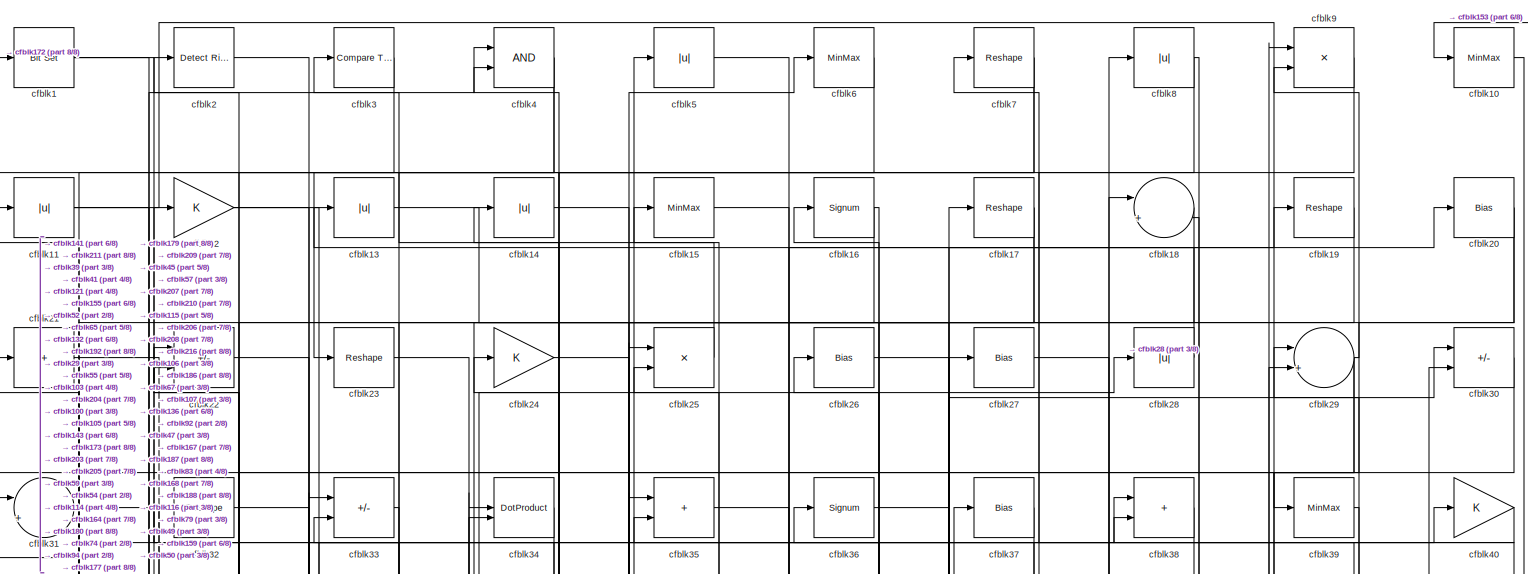
[diagram: root canvas - part 1/8, full width, top band]
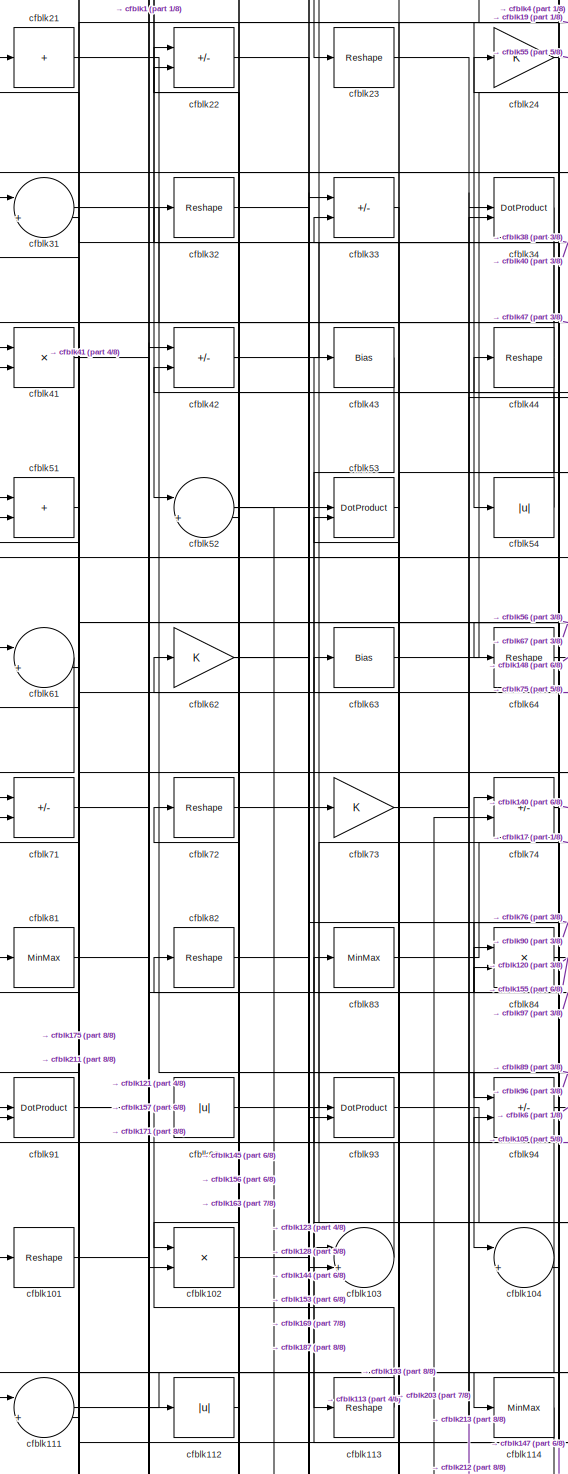
[diagram: root canvas - part 2/8, top left region]
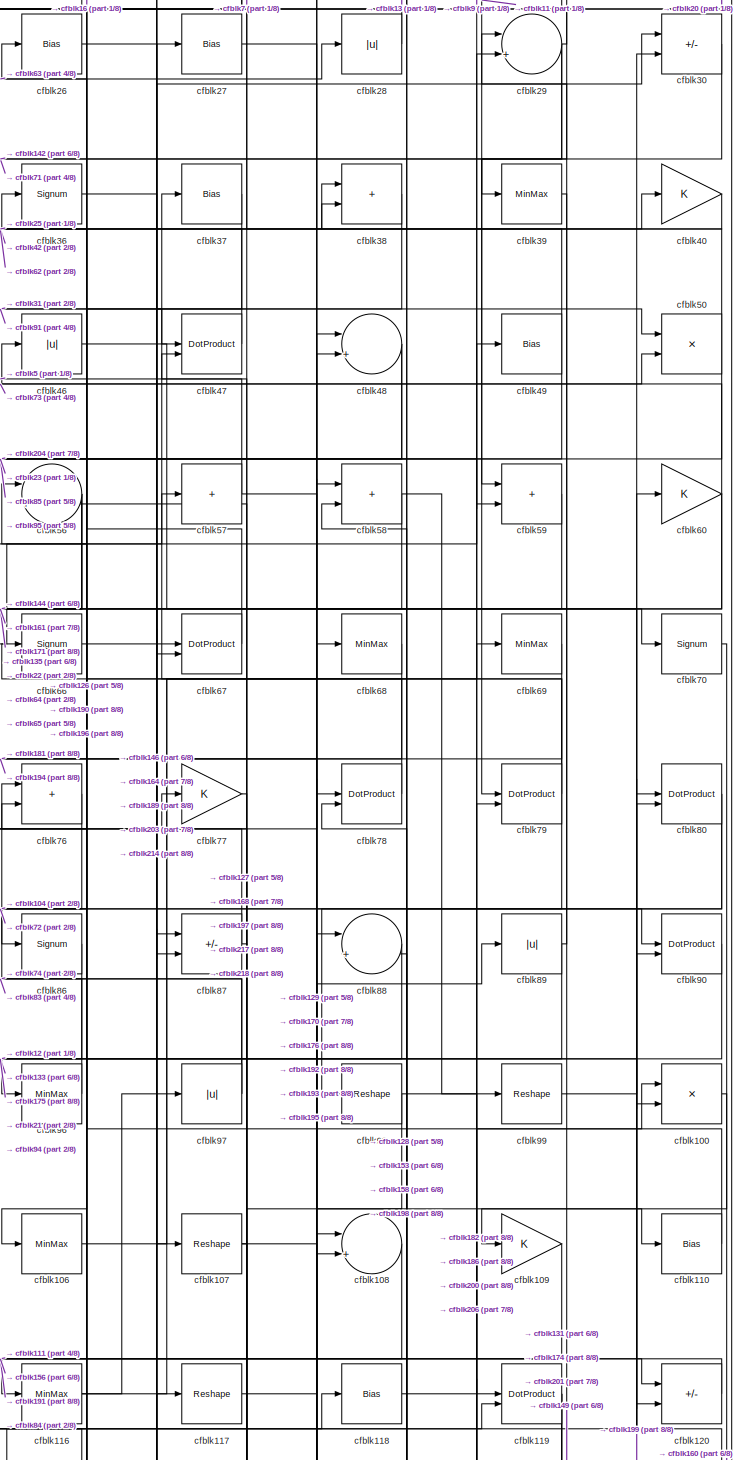
[diagram: root canvas - part 3/8, top right region]
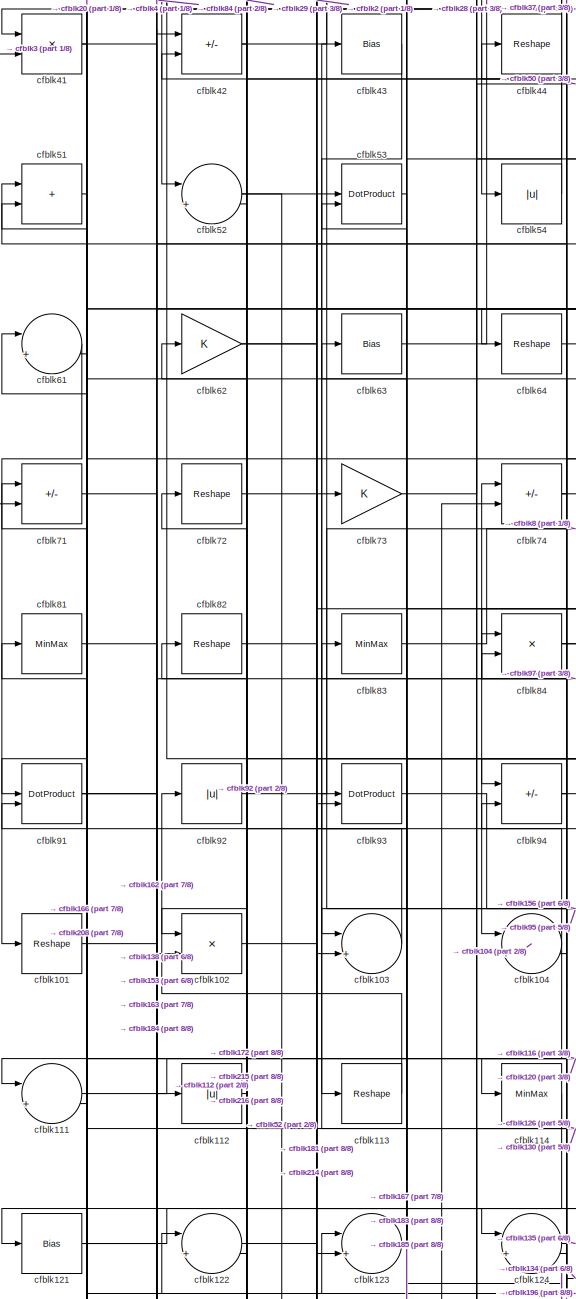
[diagram: root canvas - part 4/8, middle left region]
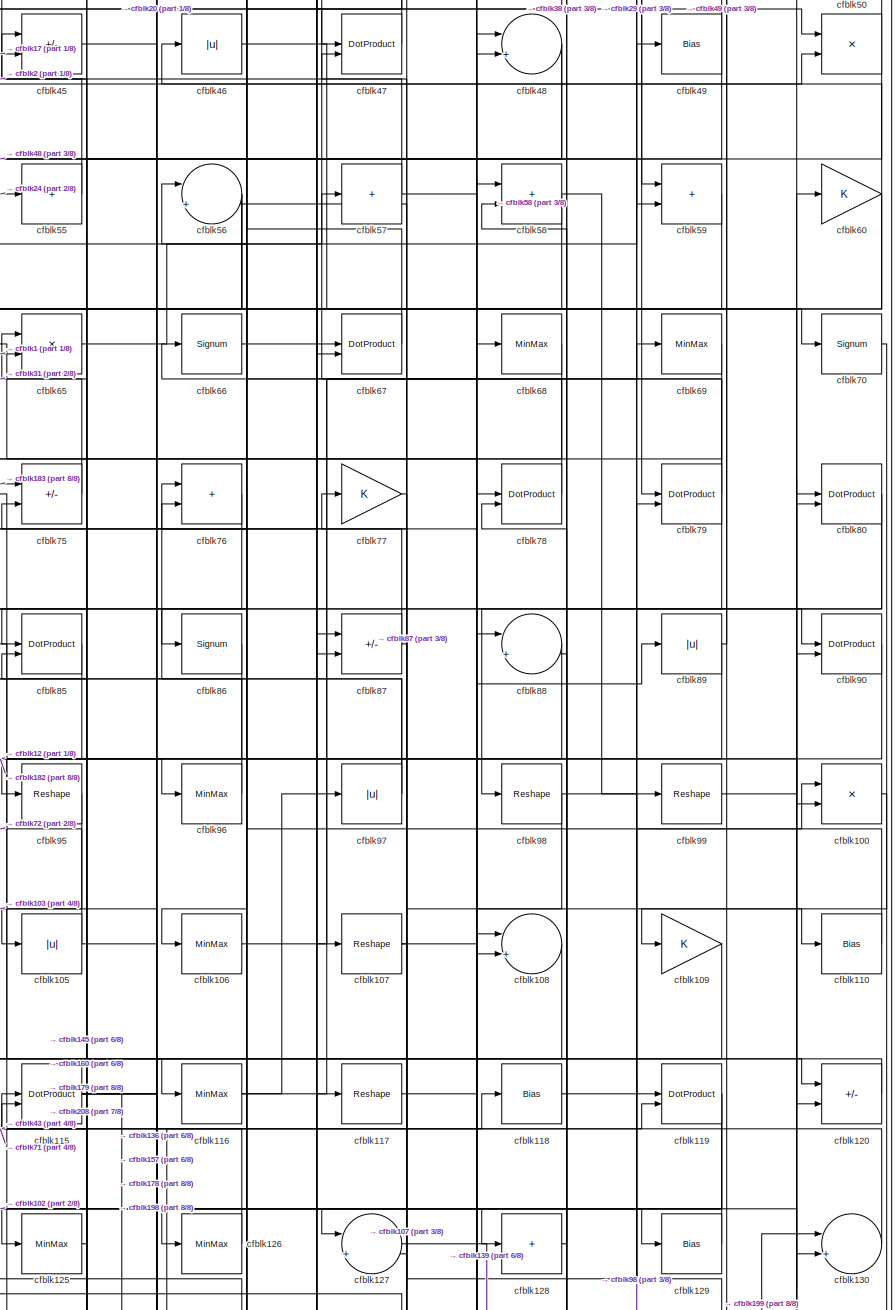
[diagram: root canvas - part 5/8, middle right region]
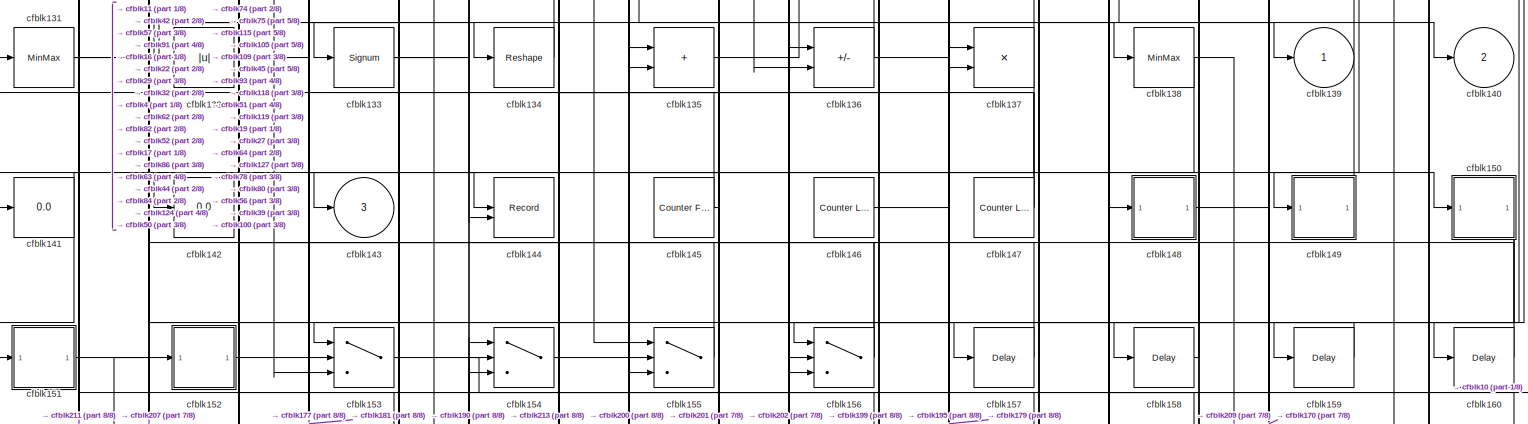
[diagram: root canvas - part 6/8, full width, middle band]
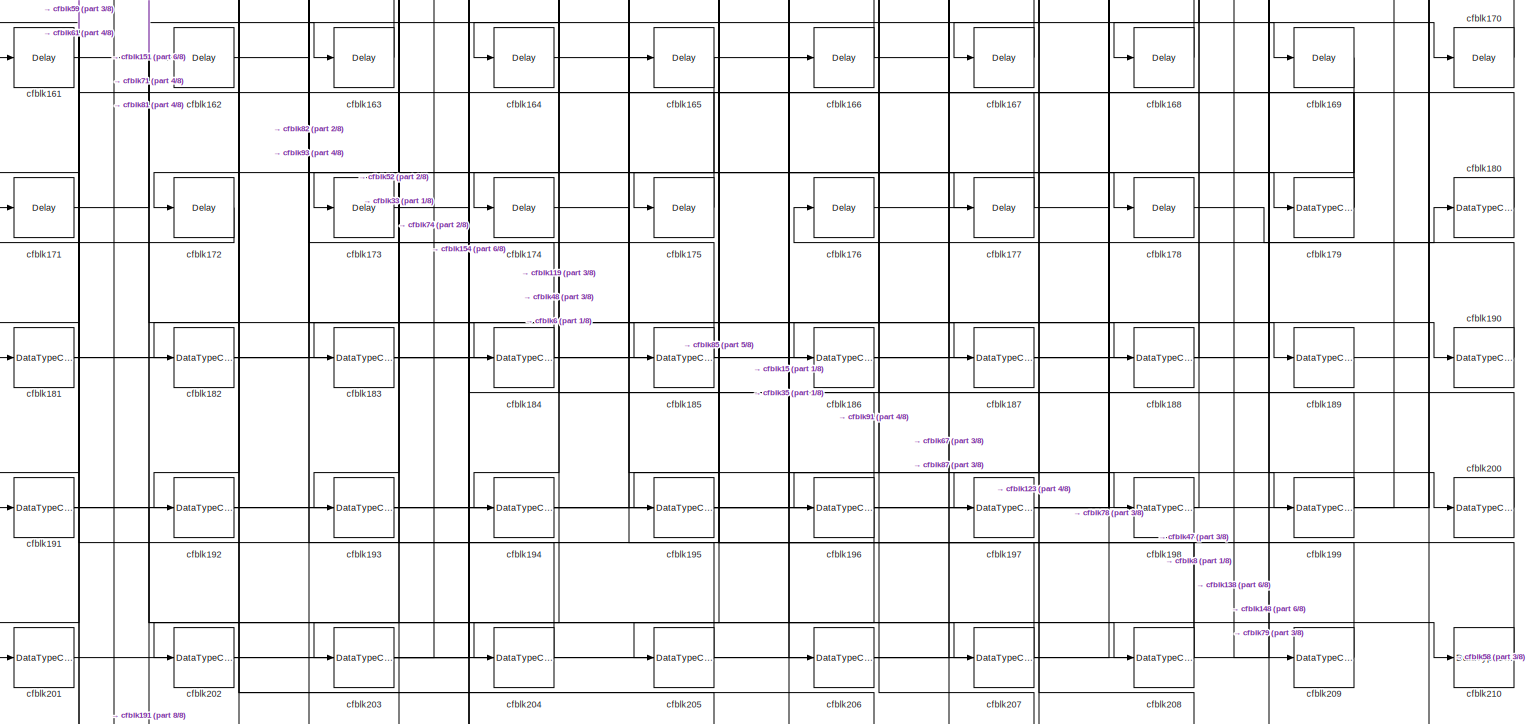
[diagram: root canvas - part 7/8, full width, bottom band]
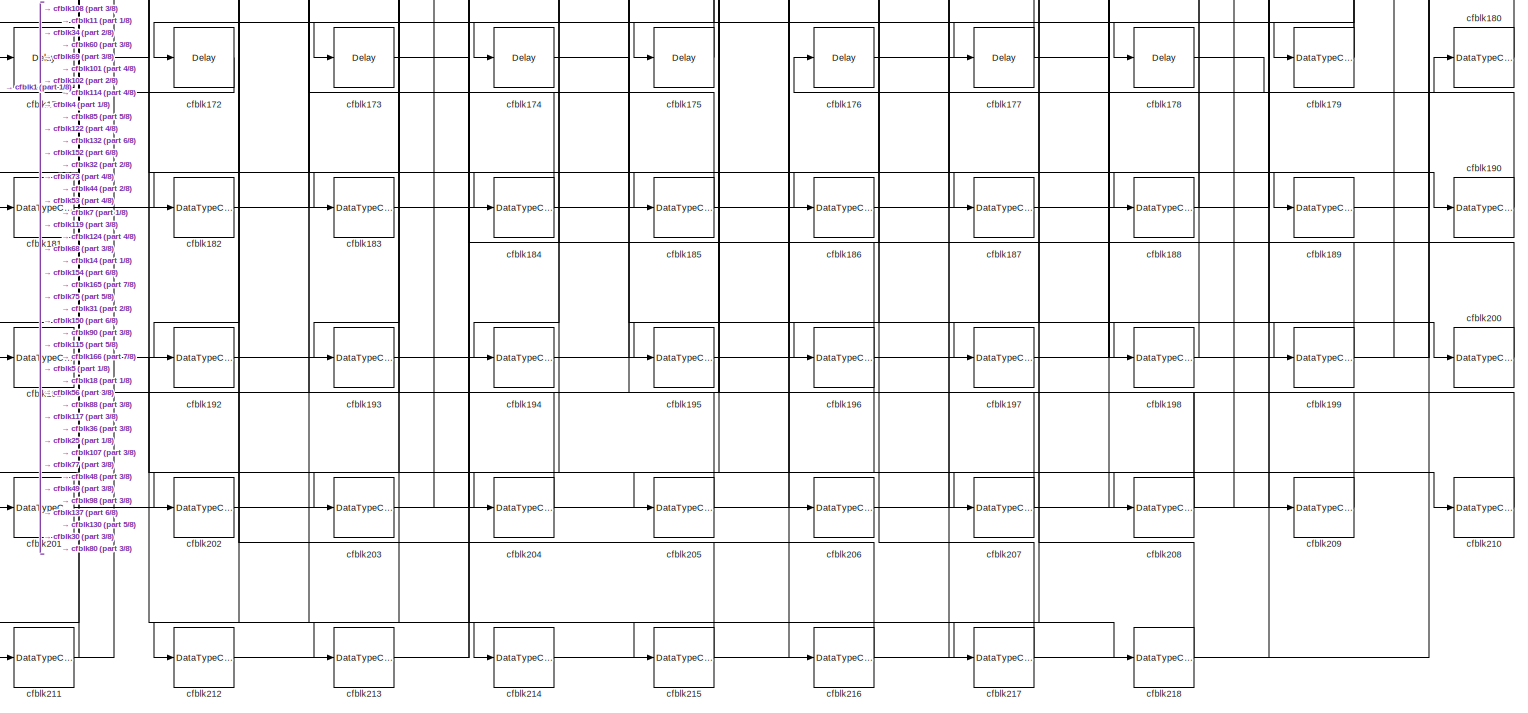
[diagram: root canvas - part 8/8, full width, bottom band]
MODEL slx_5d2e4cc144a2
KIND model
CONFIG AbsTol = auto
CONFIG EnableMultiTasking = off
CONFIG FixedStep = auto
CONFIG MaxStep = auto
CONFIG MinStep = auto
CONFIG RelTol = 1e-3
CONFIG SampleTimeConstraint = Unconstrained
CONFIG SolverName = VariableStepAuto
CONFIG StartTime = 0.0
CONFIG StopTime = 10.0
BLOCK [Reference] cfblk1  REF=simulink/Logic and Bit
Operations/Bit Set
  LibrarySourceBlock = hdlsllib/Logic and Bit\nOperations/Bit Set
  SourceBlock = simulink/Logic and Bit\nOperations/Bit Set
  SourceType = Bit Set
BLOCK [MinMax] cfblk10
BLOCK [Product] cfblk100
  Inputs = */
  RndMeth = Zero
  SaturateOnIntegerOverflow = on
BLOCK [Reshape] cfblk101
BLOCK [Product] cfblk102
  Inputs = */
  RndMeth = Zero
  SaturateOnIntegerOverflow = on
BLOCK [Sum] cfblk103
  Inputs = |++
BLOCK [Sum] cfblk104
  Inputs = |++
BLOCK [Abs] cfblk105
  SaturateOnIntegerOverflow = off
BLOCK [MinMax] cfblk106
BLOCK [Reshape] cfblk107
BLOCK [Sum] cfblk108
  Inputs = |++
BLOCK [Gain] cfblk109
BLOCK [Abs] cfblk11
  SaturateOnIntegerOverflow = off
BLOCK [Bias] cfblk110
  Bias = 0.0
  SaturateOnIntegerOverflow = off
BLOCK [Sum] cfblk111
  Inputs = |++
BLOCK [Abs] cfblk112
  SaturateOnIntegerOverflow = off
BLOCK [Reshape] cfblk113
BLOCK [MinMax] cfblk114
BLOCK [DotProduct] cfblk115
  OutDataTypeStr = Inherit: Inherit via internal rule
BLOCK [MinMax] cfblk116
BLOCK [Reshape] cfblk117
BLOCK [Bias] cfblk118
  Bias = 0.0
  SaturateOnIntegerOverflow = off
BLOCK [DotProduct] cfblk119
  OutDataTypeStr = Inherit: Inherit via internal rule
BLOCK [Gain] cfblk12
BLOCK [Sum] cfblk120
  IconShape = rectangular
  Inputs = +-
BLOCK [Bias] cfblk121
  Bias = 0.0
  SaturateOnIntegerOverflow = off
BLOCK [Sum] cfblk122
  Inputs = |++
BLOCK [Sum] cfblk123
  Inputs = |++
BLOCK [Sum] cfblk124
  Inputs = |++
BLOCK [MinMax] cfblk125
BLOCK [MinMax] cfblk126
BLOCK [Sum] cfblk127
  Inputs = |++
BLOCK [Sum] cfblk128
  IconShape = rectangular
  Inputs = +
BLOCK [Bias] cfblk129
  Bias = 0.0
  SaturateOnIntegerOverflow = off
BLOCK [Abs] cfblk13
  SaturateOnIntegerOverflow = off
BLOCK [Sum] cfblk130
  Inputs = |++
BLOCK [MinMax] cfblk131
BLOCK [Abs] cfblk132
  SaturateOnIntegerOverflow = off
BLOCK [Signum] cfblk133
BLOCK [Reshape] cfblk134
BLOCK [Sum] cfblk135
  IconShape = rectangular
BLOCK [Sum] cfblk136
  IconShape = rectangular
  Inputs = +-
BLOCK [Product] cfblk137
  Inputs = */
  RndMeth = Zero
  SaturateOnIntegerOverflow = on
BLOCK [MinMax] cfblk138
BLOCK [Outport] cfblk139
  VectorParamsAs1DForOutWhenUnconnected = off
BLOCK [Abs] cfblk14
  SaturateOnIntegerOverflow = off
BLOCK [Outport] cfblk140
  Port = 2
  VectorParamsAs1DForOutWhenUnconnected = off
BLOCK [Display] cfblk141
  Decimation = 1
BLOCK [Display] cfblk142
  Decimation = 1
BLOCK [Outport] cfblk143
  Port = 3
  VectorParamsAs1DForOutWhenUnconnected = off
BLOCK [Record] cfblk144
  CompatibilityTag = XY
  FileSettingsInternal = {"entries":[{"content":{"excelSettings":{"content":{},"type":"Streamout.ExcelSettings"}},"type":"Streamout.FileSettingStorage","uuid":""}],"packageUris":["http:\/\/schema.mathworks.com\/mf0\/streamout_blocks\/R2020a"],"version":"1.0"}
  Layout = [1 1]
  SignalsInternal = {"entries":[{"content":{"signals":[{"content":{"blockPath":[],"dimensions":[1],"domain":"","lineColor":"#a2142f","plots":[1],"port":1,"signalID":2228,"signalName":"XY Graph:1"},"type":"RecordBlkView.Signal","uuid":""},{"content":{"blockPath":[],"dimensions":[1],"domain":"","lineColor":"#139fff","plots":[1],"port":2,"signalID":2231,"signalName":"XY Graph:2"},"type":"RecordBlkView.Signal","uuid":""}...<+146ch>
  VisualizationBindings = {"xyplotplugin":{"info":[{"series":[{"bindingParametersList":[{"parameter":"X-Axis","signalID":2228,"signalName":"XY Graph:1"},{"parameter":"Y-Axis","signalID":2231,"signalName":"XY Graph:2"}],"seriesID":22557}],"subplotID":1}]}}
  st = -1
BLOCK [Reference] cfblk145  REF=hdlsllib/Sources/Counter
Free-Running
  SourceBlock = hdlsllib/Sources/Counter\nFree-Running
  SourceType = Counter Free-Running
BLOCK [Reference] cfblk146  REF=hdlsllib/Sources/Counter
Limited
  SourceBlock = hdlsllib/Sources/Counter\nLimited
  SourceType = Counter Limited
BLOCK [Reference] cfblk147  REF=hdlsllib/Sources/Counter
Limited
  SourceBlock = hdlsllib/Sources/Counter\nLimited
  SourceType = Counter Limited
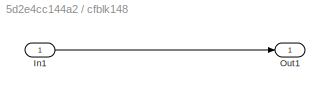
BLOCK [SubSystem] cfblk148
  LibrarySourceBlock = hdlsllib/Ports &\nSubsystems/Subsystem
BLOCK [Inport] cfblk148/In1
BLOCK [Outport] cfblk148/Out1
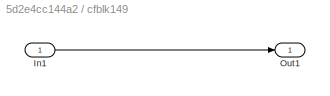
BLOCK [SubSystem] cfblk149
  LibrarySourceBlock = hdlsllib/Ports &\nSubsystems/Subsystem
BLOCK [Inport] cfblk149/In1
BLOCK [Outport] cfblk149/Out1
BLOCK [MinMax] cfblk15
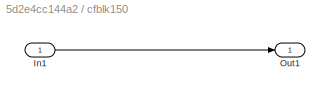
BLOCK [SubSystem] cfblk150
  LibrarySourceBlock = hdlsllib/Ports &\nSubsystems/Subsystem
BLOCK [Inport] cfblk150/In1
BLOCK [Outport] cfblk150/Out1
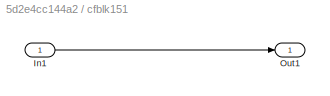
BLOCK [SubSystem] cfblk151
  LibrarySourceBlock = hdlsllib/Ports &\nSubsystems/Subsystem
BLOCK [Inport] cfblk151/In1
BLOCK [Outport] cfblk151/Out1
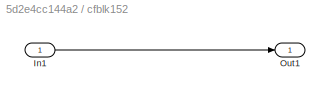
BLOCK [SubSystem] cfblk152
  LibrarySourceBlock = hdlsllib/Ports &\nSubsystems/Subsystem
BLOCK [Inport] cfblk152/In1
BLOCK [Outport] cfblk152/Out1
BLOCK [Switch] cfblk153
  InputSameDT = off
  SaturateOnIntegerOverflow = off
BLOCK [Switch] cfblk154
  InputSameDT = off
  SaturateOnIntegerOverflow = off
BLOCK [Switch] cfblk155
  InputSameDT = off
  SaturateOnIntegerOverflow = off
BLOCK [Switch] cfblk156
  InputSameDT = off
  SaturateOnIntegerOverflow = off
BLOCK [Delay] cfblk157
  InputPortMap = u0
  SampleTime = 1
BLOCK [Delay] cfblk158
  InputPortMap = u0
  SampleTime = 1
BLOCK [Delay] cfblk159
  InputPortMap = u0
  SampleTime = 1
BLOCK [Signum] cfblk16
BLOCK [Delay] cfblk160
  InputPortMap = u0
  SampleTime = 1
BLOCK [Delay] cfblk161
  InputPortMap = u0
  SampleTime = 1
BLOCK [Delay] cfblk162
  InputPortMap = u0
  SampleTime = 1
BLOCK [Delay] cfblk163
  InputPortMap = u0
  SampleTime = 1
BLOCK [Delay] cfblk164
  InputPortMap = u0
  SampleTime = 1
BLOCK [Delay] cfblk165
  InputPortMap = u0
  SampleTime = 1
BLOCK [Delay] cfblk166
  InputPortMap = u0
  SampleTime = 1
BLOCK [Delay] cfblk167
  InputPortMap = u0
  SampleTime = 1
BLOCK [Delay] cfblk168
  InputPortMap = u0
  SampleTime = 1
BLOCK [Delay] cfblk169
  InputPortMap = u0
  SampleTime = 1
BLOCK [Reshape] cfblk17
BLOCK [Delay] cfblk170
  InputPortMap = u0
  SampleTime = 1
BLOCK [Delay] cfblk171
  InputPortMap = u0
  SampleTime = 1
BLOCK [Delay] cfblk172
  InputPortMap = u0
  SampleTime = 1
BLOCK [Delay] cfblk173
  InputPortMap = u0
  SampleTime = 1
BLOCK [Delay] cfblk174
  InputPortMap = u0
  SampleTime = 1
BLOCK [Delay] cfblk175
  InputPortMap = u0
  SampleTime = 1
BLOCK [Delay] cfblk176
  InputPortMap = u0
  SampleTime = 1
BLOCK [Delay] cfblk177
  InputPortMap = u0
  SampleTime = 1
BLOCK [Delay] cfblk178
  InputPortMap = u0
  SampleTime = 1
BLOCK [DataTypeConversion] cfblk179
  RndMeth = Floor
  SaturateOnIntegerOverflow = off
BLOCK [Sum] cfblk18
  Inputs = |++
BLOCK [DataTypeConversion] cfblk180
  OutDataTypeStr = uint8
  RndMeth = Floor
  SaturateOnIntegerOverflow = off
BLOCK [DataTypeConversion] cfblk181
  RndMeth = Floor
  SaturateOnIntegerOverflow = off
BLOCK [DataTypeConversion] cfblk182
  OutDataTypeStr = uint8
  RndMeth = Floor
  SaturateOnIntegerOverflow = off
BLOCK [DataTypeConversion] cfblk183
  RndMeth = Floor
  SaturateOnIntegerOverflow = off
BLOCK [DataTypeConversion] cfblk184
  OutDataTypeStr = uint8
  RndMeth = Floor
  SaturateOnIntegerOverflow = off
BLOCK [DataTypeConversion] cfblk185
  OutDataTypeStr = uint8
  RndMeth = Floor
  SaturateOnIntegerOverflow = off
BLOCK [DataTypeConversion] cfblk186
  OutDataTypeStr = uint8
  RndMeth = Floor
  SaturateOnIntegerOverflow = off
BLOCK [DataTypeConversion] cfblk187
  OutDataTypeStr = uint8
  RndMeth = Floor
  SaturateOnIntegerOverflow = off
BLOCK [DataTypeConversion] cfblk188
  OutDataTypeStr = uint8
  RndMeth = Floor
  SaturateOnIntegerOverflow = off
BLOCK [DataTypeConversion] cfblk189
  OutDataTypeStr = uint8
  RndMeth = Floor
  SaturateOnIntegerOverflow = off
BLOCK [Reshape] cfblk19
BLOCK [DataTypeConversion] cfblk190
  OutDataTypeStr = uint8
  RndMeth = Floor
  SaturateOnIntegerOverflow = off
BLOCK [DataTypeConversion] cfblk191
  RndMeth = Floor
  SaturateOnIntegerOverflow = off
BLOCK [DataTypeConversion] cfblk192
  OutDataTypeStr = uint8
  RndMeth = Floor
  SaturateOnIntegerOverflow = off
BLOCK [DataTypeConversion] cfblk193
  OutDataTypeStr = uint8
  RndMeth = Floor
  SaturateOnIntegerOverflow = off
BLOCK [DataTypeConversion] cfblk194
  OutDataTypeStr = uint8
  RndMeth = Floor
  SaturateOnIntegerOverflow = off
BLOCK [DataTypeConversion] cfblk195
  OutDataTypeStr = uint8
  RndMeth = Floor
  SaturateOnIntegerOverflow = off
BLOCK [DataTypeConversion] cfblk196
  RndMeth = Floor
  SaturateOnIntegerOverflow = off
BLOCK [DataTypeConversion] cfblk197
  OutDataTypeStr = uint8
  RndMeth = Floor
  SaturateOnIntegerOverflow = off
BLOCK [DataTypeConversion] cfblk198
  OutDataTypeStr = uint8
  RndMeth = Floor
  SaturateOnIntegerOverflow = off
BLOCK [DataTypeConversion] cfblk199
  RndMeth = Floor
  SaturateOnIntegerOverflow = off
BLOCK [Reference] cfblk2  REF=hdlsllib/Logic and Bit
Operations/Detect Rise
Nonnegative
  SourceBlock = hdlsllib/Logic and Bit\nOperations/Detect Rise\nNonnegative
  SourceType = Detect Rise Nonnegative
BLOCK [Bias] cfblk20
  Bias = 0.0
  SaturateOnIntegerOverflow = off
BLOCK [DataTypeConversion] cfblk200
  OutDataTypeStr = uint8
  RndMeth = Floor
  SaturateOnIntegerOverflow = off
BLOCK [DataTypeConversion] cfblk201
  OutDataTypeStr = uint8
  RndMeth = Floor
  SaturateOnIntegerOverflow = off
BLOCK [DataTypeConversion] cfblk202
  OutDataTypeStr = uint8
  RndMeth = Floor
  SaturateOnIntegerOverflow = off
BLOCK [DataTypeConversion] cfblk203
  RndMeth = Floor
  SaturateOnIntegerOverflow = off
BLOCK [DataTypeConversion] cfblk204
  OutDataTypeStr = uint8
  RndMeth = Floor
  SaturateOnIntegerOverflow = off
BLOCK [DataTypeConversion] cfblk205
  OutDataTypeStr = uint8
  RndMeth = Floor
  SaturateOnIntegerOverflow = off
BLOCK [DataTypeConversion] cfblk206
  OutDataTypeStr = uint8
  RndMeth = Floor
  SaturateOnIntegerOverflow = off
BLOCK [DataTypeConversion] cfblk207
  OutDataTypeStr = uint8
  RndMeth = Floor
  SaturateOnIntegerOverflow = off
BLOCK [DataTypeConversion] cfblk208
  RndMeth = Floor
  SaturateOnIntegerOverflow = off
BLOCK [DataTypeConversion] cfblk209
  OutDataTypeStr = uint8
  RndMeth = Floor
  SaturateOnIntegerOverflow = off
BLOCK [Sum] cfblk21
  IconShape = rectangular
  Inputs = +
BLOCK [DataTypeConversion] cfblk210
  OutDataTypeStr = uint8
  RndMeth = Floor
  SaturateOnIntegerOverflow = off
BLOCK [DataTypeConversion] cfblk211
  RndMeth = Floor
  SaturateOnIntegerOverflow = off
BLOCK [DataTypeConversion] cfblk212
  OutDataTypeStr = uint8
  RndMeth = Floor
  SaturateOnIntegerOverflow = off
BLOCK [DataTypeConversion] cfblk213
  OutDataTypeStr = uint8
  RndMeth = Floor
  SaturateOnIntegerOverflow = off
BLOCK [DataTypeConversion] cfblk214
  RndMeth = Floor
  SaturateOnIntegerOverflow = off
BLOCK [DataTypeConversion] cfblk215
  OutDataTypeStr = uint8
  RndMeth = Floor
  SaturateOnIntegerOverflow = off
BLOCK [DataTypeConversion] cfblk216
  OutDataTypeStr = uint8
  RndMeth = Floor
  SaturateOnIntegerOverflow = off
BLOCK [DataTypeConversion] cfblk217
  RndMeth = Floor
  SaturateOnIntegerOverflow = off
BLOCK [DataTypeConversion] cfblk218
  OutDataTypeStr = uint8
  RndMeth = Floor
  SaturateOnIntegerOverflow = off
BLOCK [Sum] cfblk22
  IconShape = rectangular
  Inputs = +-
BLOCK [Reshape] cfblk23
BLOCK [Gain] cfblk24
BLOCK [Product] cfblk25
  Inputs = */
  RndMeth = Zero
  SaturateOnIntegerOverflow = on
BLOCK [Bias] cfblk26
  Bias = 0.0
  SaturateOnIntegerOverflow = off
BLOCK [Bias] cfblk27
  Bias = 0.0
  SaturateOnIntegerOverflow = off
BLOCK [Abs] cfblk28
  SaturateOnIntegerOverflow = off
BLOCK [Sum] cfblk29
  Inputs = |++
BLOCK [Reference] cfblk3  REF=hdlsllib/Logic and Bit
Operations/Compare
To Constant
  SourceBlock = hdlsllib/Logic and Bit\nOperations/Compare\nTo Constant
  SourceType = Compare To Constant
BLOCK [Sum] cfblk30
  IconShape = rectangular
  Inputs = +-
BLOCK [Sum] cfblk31
  Inputs = |++
BLOCK [Reshape] cfblk32
BLOCK [Sum] cfblk33
  IconShape = rectangular
  Inputs = +-
BLOCK [DotProduct] cfblk34
  OutDataTypeStr = Inherit: Inherit via internal rule
BLOCK [Sum] cfblk35
  IconShape = rectangular
BLOCK [Signum] cfblk36
BLOCK [Bias] cfblk37
  Bias = 0.0
  SaturateOnIntegerOverflow = off
BLOCK [Sum] cfblk38
  IconShape = rectangular
BLOCK [MinMax] cfblk39
BLOCK [Logic] cfblk4
  AllPortsSameDT = off
  OutDataTypeStr = boolean
BLOCK [Gain] cfblk40
BLOCK [Product] cfblk41
  Inputs = */
  RndMeth = Zero
  SaturateOnIntegerOverflow = on
BLOCK [Sum] cfblk42
  IconShape = rectangular
  Inputs = +-
BLOCK [Bias] cfblk43
  Bias = 0.0
  SaturateOnIntegerOverflow = off
BLOCK [Reshape] cfblk44
BLOCK [Sum] cfblk45
  IconShape = rectangular
  Inputs = +-
BLOCK [Abs] cfblk46
  SaturateOnIntegerOverflow = off
BLOCK [DotProduct] cfblk47
  OutDataTypeStr = Inherit: Inherit via internal rule
BLOCK [Sum] cfblk48
  Inputs = |++
BLOCK [Bias] cfblk49
  Bias = 0.0
  SaturateOnIntegerOverflow = off
BLOCK [Abs] cfblk5
  SaturateOnIntegerOverflow = off
BLOCK [Product] cfblk50
  Inputs = */
  RndMeth = Zero
  SaturateOnIntegerOverflow = on
BLOCK [Sum] cfblk51
  IconShape = rectangular
BLOCK [Sum] cfblk52
  Inputs = |++
BLOCK [DotProduct] cfblk53
  OutDataTypeStr = Inherit: Inherit via internal rule
BLOCK [Abs] cfblk54
  SaturateOnIntegerOverflow = off
BLOCK [Sum] cfblk55
  IconShape = rectangular
  Inputs = +
BLOCK [Sum] cfblk56
  Inputs = |++
BLOCK [Sum] cfblk57
  IconShape = rectangular
  Inputs = +
BLOCK [Sum] cfblk58
  IconShape = rectangular
BLOCK [Sum] cfblk59
  IconShape = rectangular
BLOCK [MinMax] cfblk6
BLOCK [Gain] cfblk60
BLOCK [Sum] cfblk61
  Inputs = |++
BLOCK [Gain] cfblk62
BLOCK [Bias] cfblk63
  Bias = 0.0
  SaturateOnIntegerOverflow = off
BLOCK [Reshape] cfblk64
BLOCK [Product] cfblk65
  Inputs = */
  RndMeth = Zero
  SaturateOnIntegerOverflow = on
BLOCK [Signum] cfblk66
BLOCK [DotProduct] cfblk67
  OutDataTypeStr = Inherit: Inherit via internal rule
BLOCK [MinMax] cfblk68
BLOCK [MinMax] cfblk69
BLOCK [Reshape] cfblk7
BLOCK [Signum] cfblk70
BLOCK [Sum] cfblk71
  IconShape = rectangular
  Inputs = +-
BLOCK [Reshape] cfblk72
BLOCK [Gain] cfblk73
BLOCK [Sum] cfblk74
  IconShape = rectangular
  Inputs = +-
BLOCK [Sum] cfblk75
  IconShape = rectangular
  Inputs = +-
BLOCK [Sum] cfblk76
  IconShape = rectangular
BLOCK [Gain] cfblk77
BLOCK [DotProduct] cfblk78
  OutDataTypeStr = Inherit: Inherit via internal rule
BLOCK [DotProduct] cfblk79
  OutDataTypeStr = Inherit: Inherit via internal rule
BLOCK [Abs] cfblk8
  SaturateOnIntegerOverflow = off
BLOCK [DotProduct] cfblk80
  OutDataTypeStr = Inherit: Inherit via internal rule
BLOCK [MinMax] cfblk81
BLOCK [Reshape] cfblk82
BLOCK [MinMax] cfblk83
BLOCK [Product] cfblk84
  Inputs = */
  RndMeth = Zero
  SaturateOnIntegerOverflow = on
BLOCK [DotProduct] cfblk85
  OutDataTypeStr = Inherit: Inherit via internal rule
BLOCK [Signum] cfblk86
BLOCK [Sum] cfblk87
  IconShape = rectangular
  Inputs = +-
BLOCK [Sum] cfblk88
  Inputs = |++
BLOCK [Abs] cfblk89
  SaturateOnIntegerOverflow = off
BLOCK [Product] cfblk9
  Inputs = */
  RndMeth = Zero
  SaturateOnIntegerOverflow = on
BLOCK [DotProduct] cfblk90
  OutDataTypeStr = Inherit: Inherit via internal rule
BLOCK [DotProduct] cfblk91
  OutDataTypeStr = Inherit: Inherit via internal rule
BLOCK [Abs] cfblk92
  SaturateOnIntegerOverflow = off
BLOCK [DotProduct] cfblk93
  OutDataTypeStr = Inherit: Inherit via internal rule
BLOCK [Sum] cfblk94
  IconShape = rectangular
  Inputs = +-
BLOCK [Reshape] cfblk95
BLOCK [MinMax] cfblk96
BLOCK [Abs] cfblk97
  SaturateOnIntegerOverflow = off
BLOCK [Reshape] cfblk98
BLOCK [Reshape] cfblk99
LINE cfblk100:1 -> cfblk160:1
LINE cfblk101:1 -> cfblk184:1
LINE cfblk102:1 -> cfblk128:1
LINE cfblk103:1 -> cfblk81:1
NET cfblk104:1 -> cfblk121:1, cfblk94:2
NET cfblk105:1 -> cfblk136:1, cfblk72:1
LINE cfblk106:1 -> cfblk48:1
NET cfblk107:1 -> cfblk129:1, cfblk197:1
LINE cfblk108:1 -> cfblk191:1
LINE cfblk109:1 -> cfblk156:3
LINE cfblk10:1 -> cfblk159:1
LINE cfblk110:1 -> cfblk76:2
LINE cfblk111:1 -> cfblk116:1
LINE cfblk112:1 -> cfblk22:1
LINE cfblk113:1 -> cfblk92:1
LINE cfblk114:1 -> cfblk172:1
NET cfblk115:1 -> cfblk130:2, cfblk136:2, cfblk178:1, cfblk198:1, cfblk20:1
NET cfblk116:1 -> cfblk97:1, cfblk9:1
LINE cfblk117:1 -> cfblk89:1
LINE cfblk118:1 -> cfblk100:1
NET cfblk119:1 -> cfblk131:1, cfblk174:1, cfblk201:1
NET cfblk11:1 -> cfblk155:3, cfblk79:1
LINE cfblk120:1 -> cfblk111:1
NET cfblk121:1 -> cfblk124:1, cfblk4:2, cfblk84:2
LINE cfblk122:1 -> cfblk214:1
LINE cfblk123:1 -> cfblk93:1
LINE cfblk124:1 -> cfblk135:1
LINE cfblk125:1 -> cfblk45:1
LINE cfblk126:1 -> cfblk43:1
LINE cfblk127:1 -> cfblk139:1
LINE cfblk128:1 -> cfblk58:2
LINE cfblk129:1 -> cfblk125:1
NET cfblk12:1 -> cfblk100:2, cfblk105:1
LINE cfblk130:1 -> cfblk71:1
NET cfblk131:1 -> cfblk134:1, cfblk57:1
LINE cfblk132:1 -> cfblk177:1
NET cfblk133:1 -> cfblk119:2, cfblk150:1
LINE cfblk134:1 -> cfblk63:1
LINE cfblk135:1 -> cfblk118:1
NET cfblk136:1 -> cfblk19:1, cfblk51:2
NET cfblk137:1 -> cfblk151:1, cfblk51:1
NET cfblk138:1 -> cfblk155:2, cfblk209:1
LINE cfblk13:1 -> cfblk107:1
NET cfblk145:1 -> cfblk115:1, cfblk62:1
LINE cfblk146:1 -> cfblk27:1
NET cfblk147:1 -> cfblk44:1, cfblk84:1
LINE cfblk148/In1:1 -> cfblk148/Out1:1
LINE cfblk148:1 -> cfblk170:1
LINE cfblk149/In1:1 -> cfblk149/Out1:1
LINE cfblk149:1 -> cfblk56:2
LINE cfblk14:1 -> cfblk179:1
LINE cfblk150/In1:1 -> cfblk150/Out1:1
NET cfblk150:1 -> cfblk195:1, cfblk213:1
LINE cfblk151/In1:1 -> cfblk151/Out1:1
LINE cfblk151:1 -> cfblk207:1
LINE cfblk152/In1:1 -> cfblk152/Out1:1
LINE cfblk152:1 -> cfblk190:1
LINE cfblk153:1 -> cfblk10:1
LINE cfblk154:1 -> cfblk199:1
LINE cfblk155:1 -> cfblk82:1
NET cfblk156:1 -> cfblk22:2, cfblk32:1
LINE cfblk157:1 -> cfblk42:1
LINE cfblk158:1 -> cfblk78:2
LINE cfblk159:1 -> cfblk156:1
LINE cfblk15:1 -> cfblk206:1
LINE cfblk160:1 -> cfblk75:2
LINE cfblk161:1 -> cfblk210:1
LINE cfblk162:1 -> cfblk93:2
LINE cfblk163:1 -> cfblk52:2
LINE cfblk164:1 -> cfblk67:1
LINE cfblk165:1 -> cfblk202:1
LINE cfblk166:1 -> cfblk91:2
LINE cfblk167:1 -> cfblk123:1
LINE cfblk168:1 -> cfblk47:2
LINE cfblk169:1 -> cfblk205:1
NET cfblk16:1 -> cfblk106:1, cfblk132:1
LINE cfblk170:1 -> cfblk58:1
LINE cfblk171:1 -> cfblk102:2
LINE cfblk172:1 -> cfblk1:1
LINE cfblk173:1 -> cfblk185:1
LINE cfblk174:1 -> cfblk188:1
LINE cfblk175:1 -> cfblk31:1
LINE cfblk176:1 -> cfblk48:2
LINE cfblk177:1 -> cfblk25:1
LINE cfblk178:1 -> cfblk180:1
NET cfblk179:1 -> cfblk115:2, cfblk137:1
NET cfblk17:1 -> cfblk143:1, cfblk45:2
LINE cfblk180:1 -> cfblk14:1
NET cfblk181:1 -> cfblk137:2, cfblk73:1
LINE cfblk182:1 -> cfblk69:1
NET cfblk183:1 -> cfblk218:1, cfblk75:1
LINE cfblk184:1 -> cfblk53:1
LINE cfblk185:1 -> cfblk53:2
LINE cfblk186:1 -> cfblk49:1
LINE cfblk187:1 -> cfblk18:1
LINE cfblk188:1 -> cfblk18:2
LINE cfblk189:1 -> cfblk80:1
LINE cfblk18:1 -> cfblk186:1
LINE cfblk190:1 -> cfblk36:1
NET cfblk191:1 -> cfblk165:1, cfblk166:1, cfblk215:1
LINE cfblk192:1 -> cfblk108:1
LINE cfblk193:1 -> cfblk108:2
LINE cfblk194:1 -> cfblk80:2
LINE cfblk195:1 -> cfblk68:1
NET cfblk196:1 -> cfblk124:2, cfblk212:1
LINE cfblk197:1 -> cfblk88:1
LINE cfblk198:1 -> cfblk88:2
NET cfblk199:1 -> cfblk130:1, cfblk56:1, cfblk60:1
LINE cfblk19:1 -> cfblk54:1
NET cfblk1:1 -> cfblk52:1, cfblk65:2
LINE cfblk200:1 -> cfblk154:1
LINE cfblk201:1 -> cfblk154:2
LINE cfblk202:1 -> cfblk154:3
NET cfblk203:1 -> cfblk74:2, cfblk78:1, cfblk87:1
LINE cfblk204:1 -> cfblk33:1
LINE cfblk205:1 -> cfblk33:2
LINE cfblk206:1 -> cfblk79:2
LINE cfblk207:1 -> cfblk15:1
NET cfblk208:1 -> cfblk61:1, cfblk85:2
LINE cfblk209:1 -> cfblk35:1
NET cfblk20:1 -> cfblk39:1, cfblk41:1
LINE cfblk210:1 -> cfblk35:2
NET cfblk211:1 -> cfblk11:1, cfblk152:1
LINE cfblk212:1 -> cfblk34:1
LINE cfblk213:1 -> cfblk34:2
NET cfblk214:1 -> cfblk117:1, cfblk30:2
LINE cfblk215:1 -> cfblk122:1
LINE cfblk216:1 -> cfblk122:2
NET cfblk217:1 -> cfblk119:1, cfblk176:1
LINE cfblk218:1 -> cfblk77:1
LINE cfblk21:1 -> cfblk96:1
LINE cfblk22:1 -> cfblk67:2
LINE cfblk23:1 -> cfblk59:2
LINE cfblk24:1 -> cfblk55:1
LINE cfblk25:1 -> cfblk3:1
LINE cfblk26:1 -> cfblk50:1
LINE cfblk27:1 -> cfblk70:1
LINE cfblk28:1 -> cfblk13:1
NET cfblk29:1 -> cfblk142:1, cfblk71:2, cfblk9:2
LINE cfblk2:1 -> cfblk103:2
LINE cfblk30:1 -> cfblk59:1
LINE cfblk31:1 -> cfblk47:1
LINE cfblk32:1 -> cfblk187:1
LINE cfblk33:1 -> cfblk203:1
LINE cfblk34:1 -> cfblk211:1
LINE cfblk35:1 -> cfblk208:1
LINE cfblk36:1 -> cfblk189:1
LINE cfblk37:1 -> cfblk91:1
LINE cfblk38:1 -> cfblk126:1
LINE cfblk39:1 -> cfblk149:1
LINE cfblk3:1 -> cfblk41:2
LINE cfblk40:1 -> cfblk38:2
NET cfblk41:1 -> cfblk112:1, cfblk61:2
NET cfblk42:1 -> cfblk102:1, cfblk38:1
LINE cfblk43:1 -> cfblk113:1
NET cfblk44:1 -> cfblk193:1, cfblk21:1
LINE cfblk45:1 -> cfblk157:1
LINE cfblk46:1 -> cfblk120:2
LINE cfblk47:1 -> cfblk12:1
NET cfblk48:1 -> cfblk204:1, cfblk95:1
NET cfblk49:1 -> cfblk25:2, cfblk85:1
NET cfblk4:1 -> cfblk141:1, cfblk192:1
NET cfblk50:1 -> cfblk135:2, cfblk7:1
LINE cfblk51:1 -> cfblk111:2
NET cfblk52:1 -> cfblk123:2, cfblk153:3
LINE cfblk53:1 -> cfblk183:1
LINE cfblk54:1 -> cfblk42:2
LINE cfblk55:1 -> cfblk2:1
NET cfblk56:1 -> cfblk104:2, cfblk144:2, cfblk64:1
NET cfblk57:1 -> cfblk110:1, cfblk5:1
NET cfblk58:1 -> cfblk86:1, cfblk99:1
LINE cfblk59:1 -> cfblk161:1
LINE cfblk5:1 -> cfblk216:1
NET cfblk60:1 -> cfblk171:1, cfblk46:1, cfblk87:2
LINE cfblk61:1 -> cfblk101:1
NET cfblk62:1 -> cfblk144:1, cfblk40:1
LINE cfblk63:1 -> cfblk28:1
LINE cfblk64:1 -> cfblk148:1
LINE cfblk65:1 -> cfblk29:2
LINE cfblk66:1 -> cfblk30:1
LINE cfblk67:1 -> cfblk16:1
LINE cfblk68:1 -> cfblk194:1
LINE cfblk69:1 -> cfblk181:1
LINE cfblk6:1 -> cfblk164:1
LINE cfblk70:1 -> cfblk109:1
LINE cfblk71:1 -> cfblk162:1
LINE cfblk72:1 -> cfblk90:1
LINE cfblk73:1 -> cfblk50:2
NET cfblk74:1 -> cfblk140:1, cfblk4:1
LINE cfblk75:1 -> cfblk31:2
LINE cfblk76:1 -> cfblk104:1
LINE cfblk77:1 -> cfblk217:1
LINE cfblk78:1 -> cfblk37:1
NET cfblk79:1 -> cfblk26:1, cfblk66:1, cfblk98:1
NET cfblk7:1 -> cfblk114:1, cfblk173:1
NET cfblk80:1 -> cfblk153:1, cfblk158:1
LINE cfblk81:1 -> cfblk163:1
LINE cfblk82:1 -> cfblk169:1
LINE cfblk83:1 -> cfblk8:1
NET cfblk84:1 -> cfblk120:1, cfblk155:1
LINE cfblk85:1 -> cfblk182:1
LINE cfblk86:1 -> cfblk133:1
NET cfblk87:1 -> cfblk127:1, cfblk65:1
LINE cfblk88:1 -> cfblk196:1
NET cfblk89:1 -> cfblk29:1, cfblk94:1
NET cfblk8:1 -> cfblk167:1, cfblk168:1
LINE cfblk90:1 -> cfblk175:1
NET cfblk91:1 -> cfblk138:1, cfblk153:2
LINE cfblk92:1 -> cfblk17:1
LINE cfblk93:1 -> cfblk156:2
NET cfblk94:1 -> cfblk24:1, cfblk6:1
LINE cfblk95:1 -> cfblk103:1
LINE cfblk96:1 -> cfblk76:1
NET cfblk97:1 -> cfblk74:1, cfblk83:1
NET cfblk98:1 -> cfblk127:2, cfblk200:1
LINE cfblk99:1 -> cfblk90:2
LINE cfblk9:1 -> cfblk23:1
note: NET lines group one-source signal fan-out (src -> all destinations, sorted); 1:1 wires keep LINE
